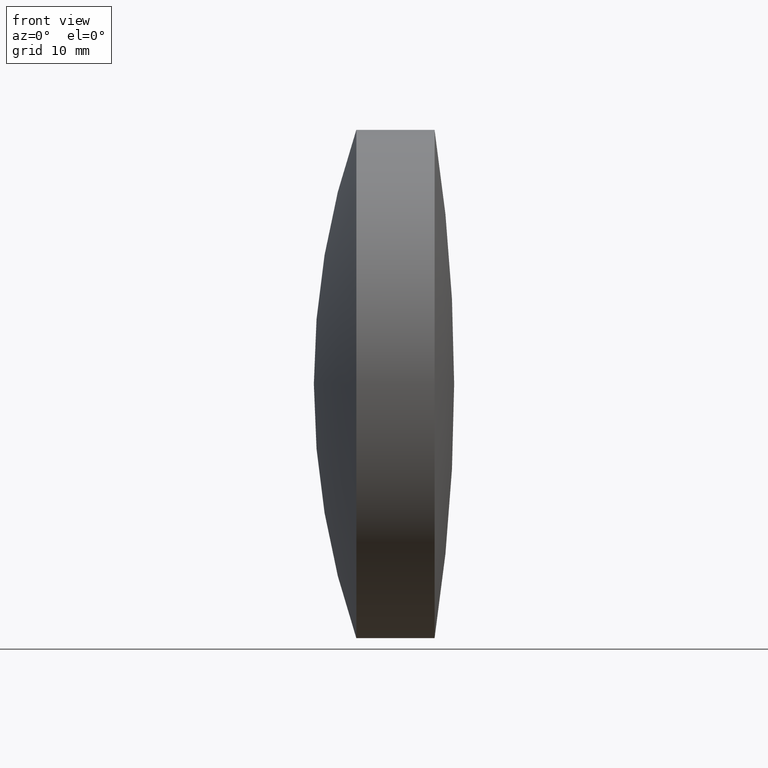
[diagram: clean part render]
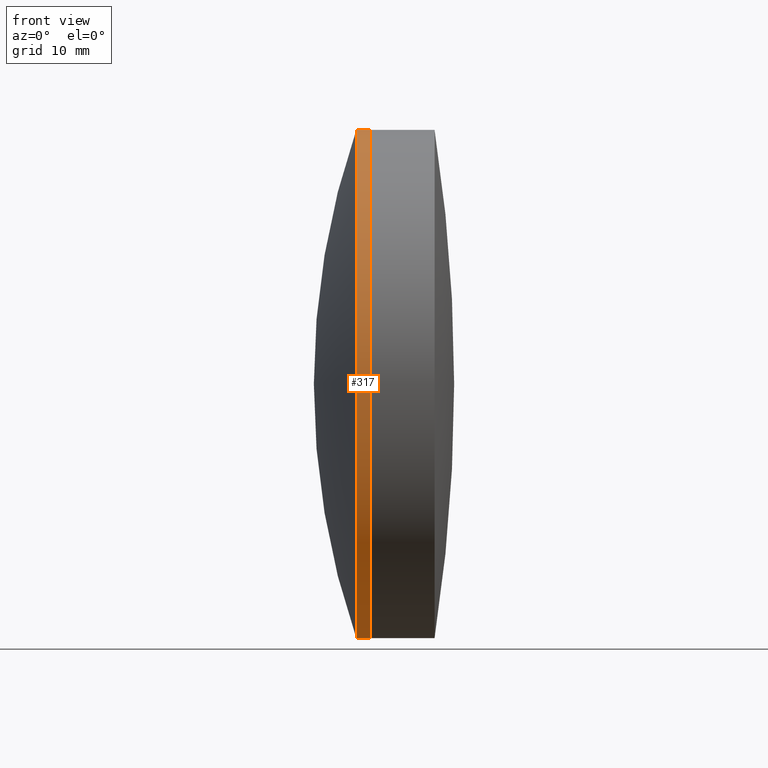
[diagram: same view with one face highlighted and labeled with its STEP entity id]
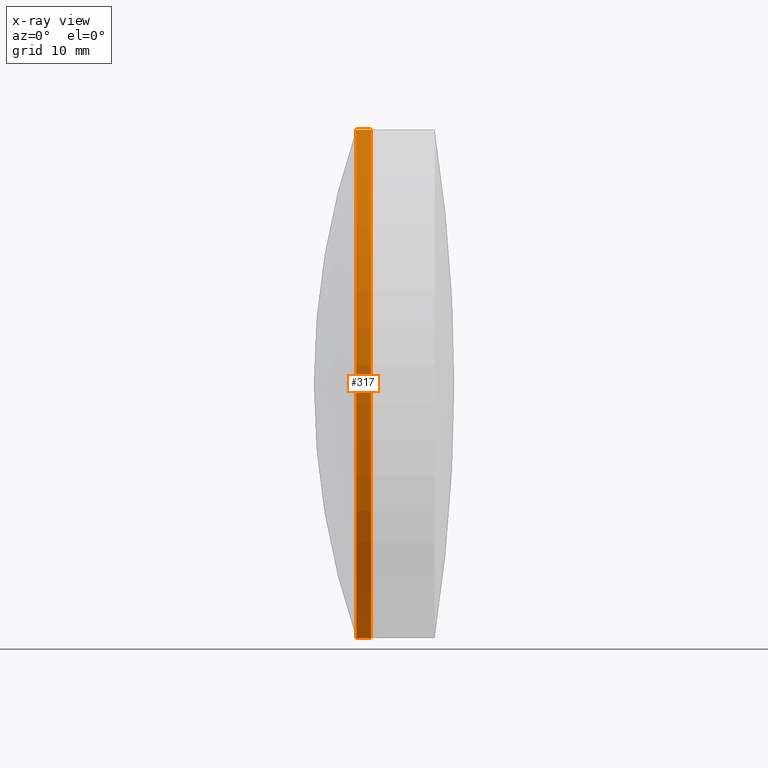
[diagram: x-ray of the same camera — body ghosted, the highlighted face saturated]
A machine part, front view. The second image highlights one B-rep face of the part: STEP entity #317.
The next image is the same camera in x-ray: the body ghosted, the highlighted face saturated — about 0% of this face is hidden behind the body in this view.
In plain terms, the highlighted cylindrical surface (partial cylindrical patch) has radius 31.5 mm, axis along (-1, -0, -0).
Its self-contained STEP definition (entity closure, byte-faithful):
#1 = EDGE_LOOP ( 'NONE', ( #212, #343, #2, #134 ) ) ;
#2 = ORIENTED_EDGE ( 'NONE', *, *, #14, .T. ) ;
#10 = DIRECTION ( 'NONE',  ( -1.000000000000000000, -0.0000000000000000000, -0.0000000000000000000 ) ) ;
#14 = EDGE_CURVE ( 'NONE', #27, #249, #209, .T. ) ;
#17 = CARTESIAN_POINT ( 'NONE',  ( 314.9446393134603600, 0.0000000000000000000, 0.0000000000000000000 ) ) ;
#18 = DIRECTION ( 'NONE',  ( 0.0000000000000000000, 0.0000000000000000000, 1.000000000000000000 ) ) ;
#21 = AXIS2_PLACEMENT_3D ( 'NONE', #297, #305, #18 ) ;
#27 = VERTEX_POINT ( 'NONE', #258 ) ;
#59 = VERTEX_POINT ( 'NONE', #113 ) ;
#66 = AXIS2_PLACEMENT_3D ( 'NONE', #17, #205, #125 ) ;
#90 = DIRECTION ( 'NONE',  ( 0.0000000000000000000, 0.0000000000000000000, 1.000000000000000000 ) ) ;
#92 = VERTEX_POINT ( 'NONE', #160 ) ;
#113 = CARTESIAN_POINT ( 'NONE',  ( 316.7446973952964400, 3.857637417314150900E-015, -31.49999999999990400 ) ) ;
#125 = DIRECTION ( 'NONE',  ( 0.0000000000000000000, 0.0000000000000000000, 1.000000000000000000 ) ) ;
#127 = CYLINDRICAL_SURFACE ( 'NONE', #298, 31.49999999999990400 ) ;
#134 = ORIENTED_EDGE ( 'NONE', *, *, #247, .F. ) ;
#136 = CARTESIAN_POINT ( 'NONE',  ( 124.5233095260452400, 0.0000000000000000000, 0.0000000000000000000 ) ) ;
#145 = DIRECTION ( 'NONE',  ( -1.000000000000000000, -0.0000000000000000000, -0.0000000000000000000 ) ) ;
#160 = CARTESIAN_POINT ( 'NONE',  ( 314.9446393134603600, 3.857637417314149300E-015, -31.49999999999991100 ) ) ;
#169 = VECTOR ( 'NONE', #294, 1000.000000000000000 ) ;
#182 = LINE ( 'NONE', #291, #169 ) ;
#192 = FACE_OUTER_BOUND ( 'NONE', #1, .T. ) ;
#205 = DIRECTION ( 'NONE',  ( -1.000000000000000000, -0.0000000000000000000, -0.0000000000000000000 ) ) ;
#207 = VECTOR ( 'NONE', #145, 1000.000000000000000 ) ;
#209 = LINE ( 'NONE', #313, #207 ) ;
#212 = ORIENTED_EDGE ( 'NONE', *, *, #273, .F. ) ;
#216 = CIRCLE ( 'NONE', #66, 31.49999999999990400 ) ;
#219 = CIRCLE ( 'NONE', #21, 31.49999999999990400 ) ;
#236 = EDGE_CURVE ( 'NONE', #59, #27, #219, .T. ) ;
#247 = EDGE_CURVE ( 'NONE', #92, #249, #216, .T. ) ;
#249 = VERTEX_POINT ( 'NONE', #309 ) ;
#258 = CARTESIAN_POINT ( 'NONE',  ( 316.7446973952964400, 0.0000000000000000000, 31.49999999999990400 ) ) ;
#273 = EDGE_CURVE ( 'NONE', #59, #92, #182, .T. ) ;
#291 = CARTESIAN_POINT ( 'NONE',  ( 124.5233095260452400, 3.857637417314150900E-015, -31.49999999999990400 ) ) ;
#294 = DIRECTION ( 'NONE',  ( -1.000000000000000000, -0.0000000000000000000, -0.0000000000000000000 ) ) ;
#297 = CARTESIAN_POINT ( 'NONE',  ( 316.7446973952964400, 0.0000000000000000000, 0.0000000000000000000 ) ) ;
#298 = AXIS2_PLACEMENT_3D ( 'NONE', #136, #10, #90 ) ;
#305 = DIRECTION ( 'NONE',  ( -1.000000000000000000, -0.0000000000000000000, -0.0000000000000000000 ) ) ;
#309 = CARTESIAN_POINT ( 'NONE',  ( 314.9446393134603600, 0.0000000000000000000, 31.49999999999989000 ) ) ;
#313 = CARTESIAN_POINT ( 'NONE',  ( 124.5233095260452400, 0.0000000000000000000, 31.49999999999990400 ) ) ;
#317 = ADVANCED_FACE ( 'NONE', ( #192 ), #127, .T. ) ;
#343 = ORIENTED_EDGE ( 'NONE', *, *, #236, .T. ) ;